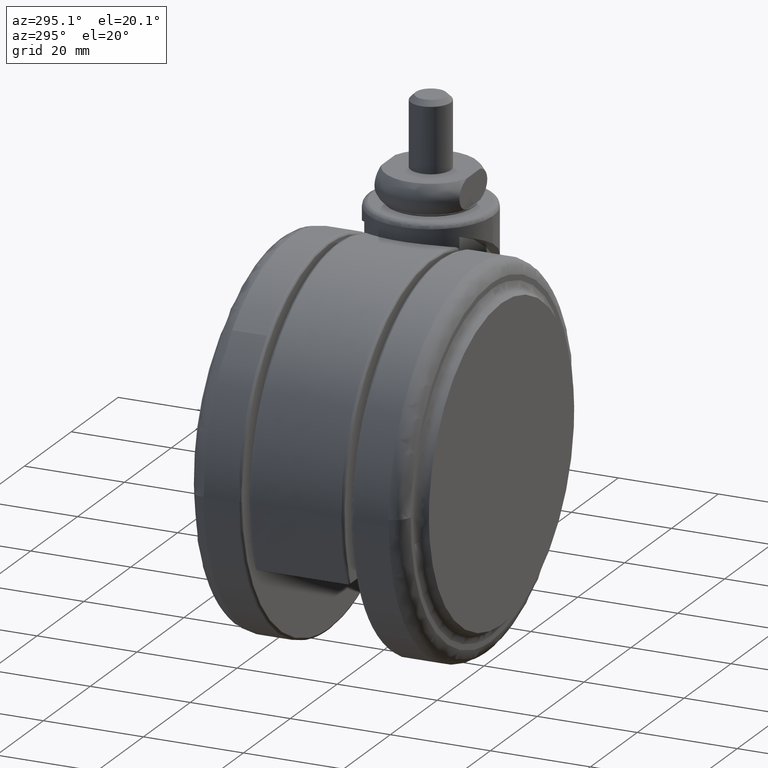
[diagram: clean part render]
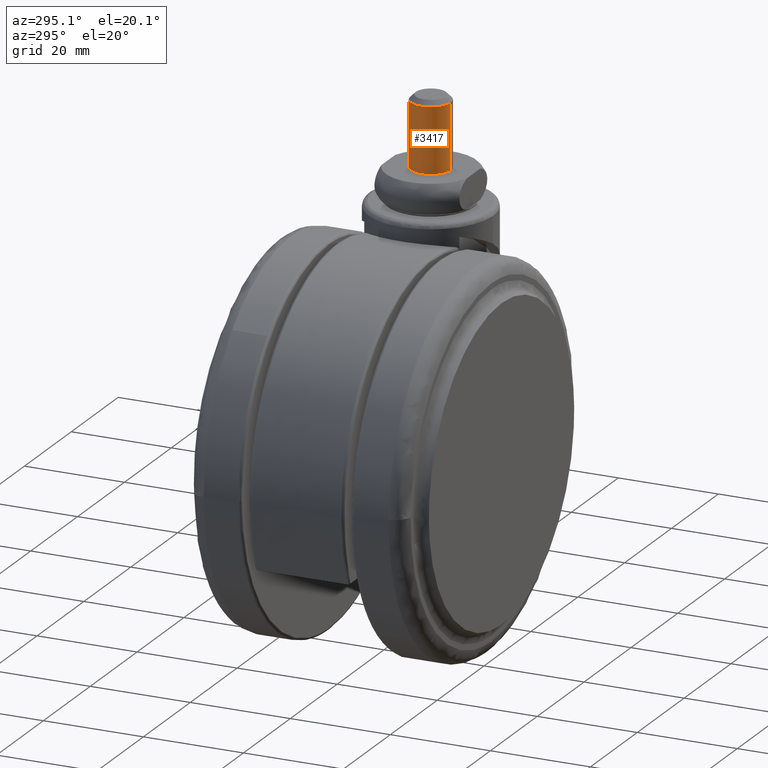
[diagram: same view with one face highlighted and labeled with its STEP entity id]
A machine part, auxiliary view. The second image highlights one B-rep face of the part: STEP entity #3417.
In plain terms, the highlighted face is a freeform B-spline surface patch.
Its self-contained STEP definition (entity closure, byte-faithful):
#3247=CARTESIAN_POINT('',(-0.034906142196941,-3.999847692254744,19.499999999999780));
#3248=VERTEX_POINT('',#3247);
#3256=CARTESIAN_POINT('',(0.034906142196941,3.999847692254802,19.499999999999780));
#3257=VERTEX_POINT('',#3256);
#3263=CARTESIAN_POINT('',(-4.0,2.842171E-014,19.499999999999648));
#3264=VERTEX_POINT('',#3263);
#3265=CARTESIAN_POINT('',(-4.0,2.842171E-014,19.499999999999648));
#3266=CARTESIAN_POINT('',(-4.000000000100840,4.000000000000841,19.499999999999723));
#3267=CARTESIAN_POINT('',(-2.025633E-010,4.000000000001661,19.499999999999780));
#3268=CARTESIAN_POINT('',(0.017453403283257,4.000000000001664,19.499999999999783));
#3269=CARTESIAN_POINT('',(0.034906142196941,3.999847692254802,19.499999999999776));
#3277=(BOUNDED_CURVE()B_SPLINE_CURVE(2,(#3265,#3266,#3267,#3268,#3269),.UNSPECIFIED.,.F.,.U.)B_SPLINE_CURVE_WITH_KNOTS((3,2,3),(0.500000000000000,0.750000000000000,0.751539894352906),.UNSPECIFIED.)CURVE()GEOMETRIC_REPRESENTATION_ITEM()RATIONAL_B_SPLINE_CURVE((1.0,0.707106781186548,1.0,0.998195901545379,0.996414028058938))REPRESENTATION_ITEM(''));
#3278=EDGE_CURVE('',#3264,#3257,#3277,.T.);
#3280=CARTESIAN_POINT('',(-0.034906142196941,-3.999847692254744,19.499999999999776));
#3281=CARTESIAN_POINT('',(-3.999999999898277,-3.965244841977317,19.499999999999716));
#3282=CARTESIAN_POINT('',(-4.0,2.842171E-014,19.499999999999648));
#3290=(BOUNDED_CURVE()B_SPLINE_CURVE(2,(#3280,#3281,#3282),.UNSPECIFIED.,.F.,.U.)B_SPLINE_CURVE_WITH_KNOTS((3,3),(0.251539894352906,0.500000000000000),.UNSPECIFIED.)CURVE()GEOMETRIC_REPRESENTATION_ITEM()RATIONAL_B_SPLINE_CURVE((0.996414028058938,0.708910879641168,1.0))REPRESENTATION_ITEM(''));
#3291=EDGE_CURVE('',#3248,#3264,#3290,.T.);
#3351=CARTESIAN_POINT('',(-0.034906141993496,-3.999847692256656,19.824999999999651));
#3352=CARTESIAN_POINT('',(-4.034753834250179,-3.964941550263160,19.824999999999651));
#3353=CARTESIAN_POINT('',(-3.999847692256684,0.034906141993524,19.824999999999651));
#3354=CARTESIAN_POINT('',(-3.964941550263188,4.034753834250207,19.824999999999651));
#3355=CARTESIAN_POINT('',(0.034906141993496,3.999847692256712,19.824999999999651));
#3356=CARTESIAN_POINT('',(-0.034906141993496,-3.999847692256656,6.166874999999733));
#3357=CARTESIAN_POINT('',(-4.034753834250179,-3.964941550263160,6.166874999999733));
#3358=CARTESIAN_POINT('',(-3.999847692256684,0.034906141993524,6.166874999999733));
#3359=CARTESIAN_POINT('',(-3.964941550263188,4.034753834250207,6.166874999999733));
#3360=CARTESIAN_POINT('',(0.034906141993496,3.999847692256712,6.166874999999733));
#3368=(BOUNDED_SURFACE()B_SPLINE_SURFACE(2,1,((#3351,#3356),(#3352,#3357),(#3353,#3358),(#3354,#3359),(#3355,#3360)),.UNSPECIFIED.,.F.,.F.,.U.)B_SPLINE_SURFACE_WITH_KNOTS((3,2,3),(2,2),(0.0,6.627416997969519,13.254833995939039),(0.0,13.658124999999920),.UNSPECIFIED.)GEOMETRIC_REPRESENTATION_ITEM()RATIONAL_B_SPLINE_SURFACE(((1.0,1.0),(0.707106781186548,0.707106781186548),(1.0,1.0),(0.707106781186548,0.707106781186548),(1.0,1.0)))REPRESENTATION_ITEM('')SURFACE());
#3369=ORIENTED_EDGE('',*,*,#3291,.T.);
#3370=ORIENTED_EDGE('',*,*,#3278,.T.);
#3371=CARTESIAN_POINT('',(0.034906142367531,3.999847692253449,6.499999999999730));
#3372=VERTEX_POINT('',#3371);
#3373=CARTESIAN_POINT('',(0.034906142196941,3.999847692254802,19.499999999999780));
#3374=CARTESIAN_POINT('',(0.034906142367531,3.999847692253449,6.499999999999730));
#3375=QUASI_UNIFORM_CURVE('',1,(#3373,#3374),.UNSPECIFIED.,.F.,.U.);
#3376=EDGE_CURVE('',#3257,#3372,#3375,.T.);
#3377=ORIENTED_EDGE('',*,*,#3376,.T.);
#3378=CARTESIAN_POINT('',(-4.0,2.842171E-014,6.499999999999730));
#3379=VERTEX_POINT('',#3378);
#3380=CARTESIAN_POINT('',(0.034906142367531,3.999847692253450,6.499999999999732));
#3381=CARTESIAN_POINT('',(0.017453403469835,4.000000000000028,6.499999999999731));
#3382=CARTESIAN_POINT('',(0.0,4.000000000000028,6.499999999999730));
#3383=CARTESIAN_POINT('',(-4.000000000000000,4.000000000000028,6.499999999999731));
#3384=CARTESIAN_POINT('',(-4.0,2.842171E-014,6.499999999999730));
#3392=(BOUNDED_CURVE()B_SPLINE_CURVE(2,(#3380,#3381,#3382,#3383,#3384),.UNSPECIFIED.,.F.,.U.)B_SPLINE_CURVE_WITH_KNOTS((3,2,3),(0.248460105648541,0.250000000000000,0.500000000000000),.UNSPECIFIED.)CURVE()GEOMETRIC_REPRESENTATION_ITEM()RATIONAL_B_SPLINE_CURVE((0.996414028062286,0.998195901547074,1.0,0.707106781186548,1.0))REPRESENTATION_ITEM(''));
#3393=EDGE_CURVE('',#3372,#3379,#3392,.T.);
#3394=ORIENTED_EDGE('',*,*,#3393,.T.);
#3395=CARTESIAN_POINT('',(-0.034906142367531,-3.999847692253392,6.499999999999730));
#3396=VERTEX_POINT('',#3395);
#3397=CARTESIAN_POINT('',(-4.0,2.842171E-014,6.499999999999730));
#3398=CARTESIAN_POINT('',(-4.000000000000001,-3.965244842009069,6.499999999999731));
#3399=CARTESIAN_POINT('',(-0.034906142367533,-3.999847692253392,6.499999999999729));
#3407=(BOUNDED_CURVE()B_SPLINE_CURVE(2,(#3397,#3398,#3399),.UNSPECIFIED.,.F.,.U.)B_SPLINE_CURVE_WITH_KNOTS((3,3),(0.500000000000000,0.748460105648541),.UNSPECIFIED.)CURVE()GEOMETRIC_REPRESENTATION_ITEM()RATIONAL_B_SPLINE_CURVE((1.0,0.708910879639473,0.996414028062286))REPRESENTATION_ITEM(''));
#3408=EDGE_CURVE('',#3379,#3396,#3407,.T.);
#3409=ORIENTED_EDGE('',*,*,#3408,.T.);
#3410=CARTESIAN_POINT('',(-0.034906142196941,-3.999847692254744,19.499999999999780));
#3411=CARTESIAN_POINT('',(-0.034906142367531,-3.999847692253392,6.499999999999730));
#3412=QUASI_UNIFORM_CURVE('',1,(#3410,#3411),.UNSPECIFIED.,.F.,.U.);
#3413=EDGE_CURVE('',#3248,#3396,#3412,.T.);
#3414=ORIENTED_EDGE('',*,*,#3413,.F.);
#3415=EDGE_LOOP('',(#3369,#3370,#3377,#3394,#3409,#3414));
#3416=FACE_OUTER_BOUND('',#3415,.T.);
#3417=ADVANCED_FACE('',(#3416),#3368,.T.);